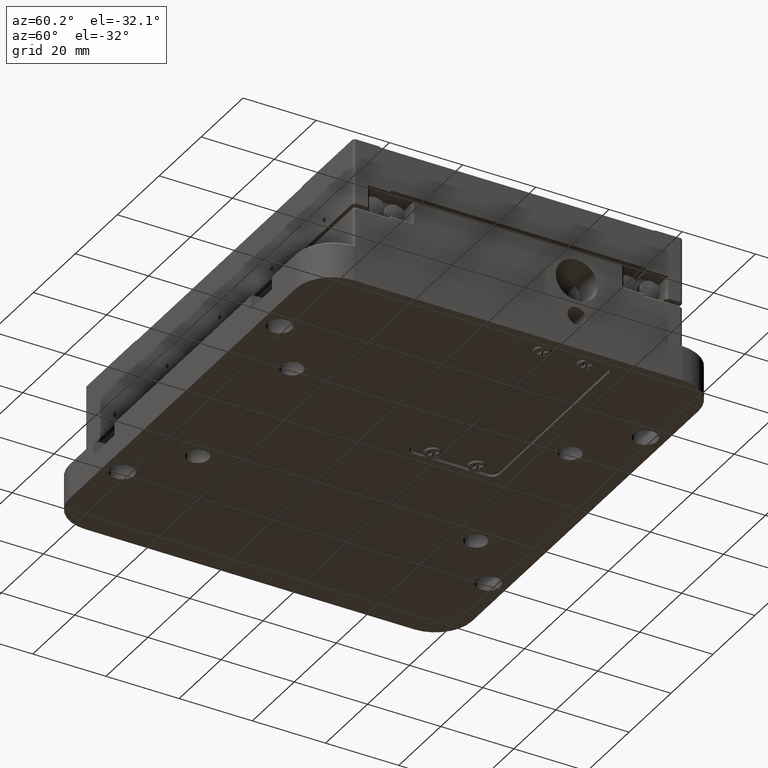
[diagram: clean part render]
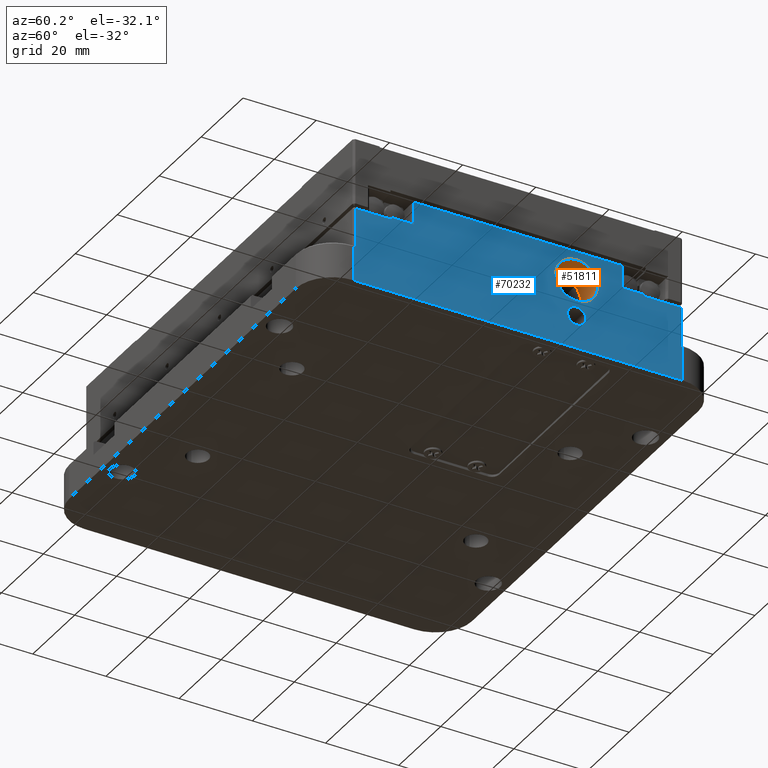
[diagram: same view with the hole feature highlighted: cylindrical wall and planar end face, labeled with their STEP entity ids]
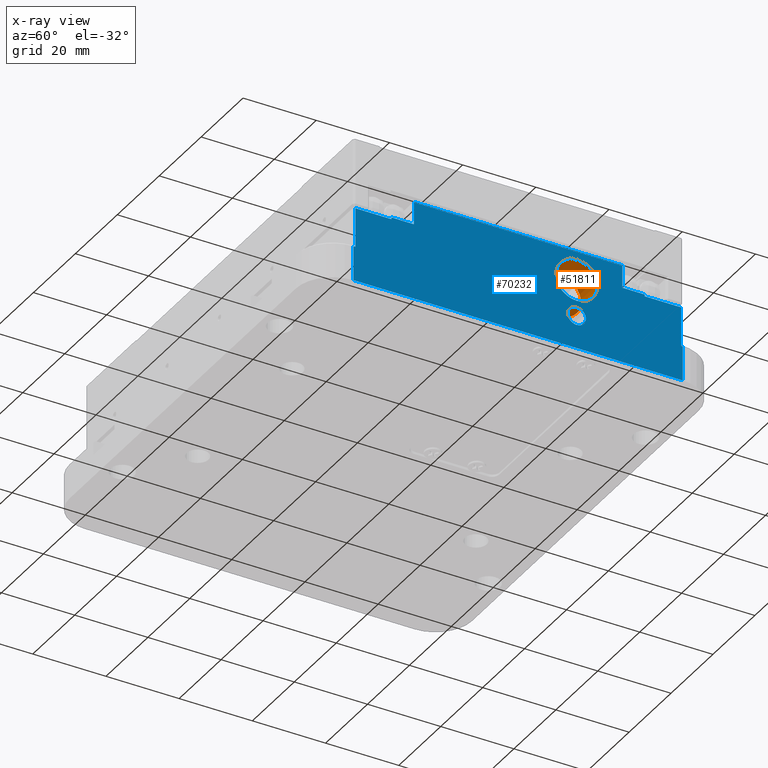
[diagram: x-ray of the same camera — body ghosted, the hole faces saturated]
A machine part, auxiliary view. The highlighted faces form one hole feature of diameter 11.5 mm: the cylindrical wall (entity #51811, orange) and its adjacent planar end face (entity #70232, blue) — they share a circular edge in the B-rep.
The next image is the same camera in x-ray (body ghosted, the hole faces saturated) — the bore reads through the body.
Wall:
#876 = DIRECTION ( 'NONE',  ( 1.000000000000000000, -0.000000000000000000, -0.000000000000000000 ) ) ;
#1079 = AXIS2_PLACEMENT_3D ( 'NONE', #43510, #72374, #71930 ) ;
#2649 = DIRECTION ( 'NONE',  ( 0.000000000000000000, 0.000000000000000000, -1.000000000000000000 ) ) ;
#8419 = VERTEX_POINT ( 'NONE', #36433 ) ;
#14841 = AXIS2_PLACEMENT_3D ( 'NONE', #70426, #876, #2649 ) ;
#15322 = CYLINDRICAL_SURFACE ( 'NONE', #14841, 5.750000000000005329 ) ;
#16817 = EDGE_CURVE ( 'NONE', #45697, #45697, #56047, .T. ) ;
#20576 = DIRECTION ( 'NONE',  ( 0.000000000000000000, 0.000000000000000000, -1.000000000000000000 ) ) ;
#22540 = FACE_OUTER_BOUND ( 'NONE', #37172, .T. ) ;
#24247 = AXIS2_PLACEMENT_3D ( 'NONE', #74779, #82468, #20576 ) ;
#28447 = FACE_OUTER_BOUND ( 'NONE', #78842, .T. ) ;
#32210 = EDGE_CURVE ( 'NONE', #8419, #8419, #64581, .T. ) ;
#36433 = CARTESIAN_POINT ( 'NONE',  ( 150.8923253742261466, 6.150635983151086172, 83.05000005662441254 ) ) ;
#37172 = EDGE_LOOP ( 'NONE', ( #37190 ) ) ;
#37190 = ORIENTED_EDGE ( 'NONE', *, *, #16817, .T. ) ;
#43510 = CARTESIAN_POINT ( 'NONE',  ( 150.8923253742261466, 6.150635983151086172, 88.80000005662441254 ) ) ;
#45253 = CARTESIAN_POINT ( 'NONE',  ( 158.8923253742261466, 6.150635983151086172, 83.05000005662441254 ) ) ;
#45697 = VERTEX_POINT ( 'NONE', #45253 ) ;
#51811 = ADVANCED_FACE ( 'NONE', ( #28447, #22540 ), #15322, .F. ) ;
#56047 = CIRCLE ( 'NONE', #24247, 5.750000000000005329 ) ;
#64581 = CIRCLE ( 'NONE', #1079, 5.750000000000005329 ) ;
#65755 = ORIENTED_EDGE ( 'NONE', *, *, #32210, .F. ) ;
#70426 = CARTESIAN_POINT ( 'NONE',  ( 134.8923253742261466, 6.150635983151086172, 88.80000005662441254 ) ) ;
#71930 = DIRECTION ( 'NONE',  ( 0.000000000000000000, 0.000000000000000000, -1.000000000000000000 ) ) ;
#72374 = DIRECTION ( 'NONE',  ( 1.000000000000000000, -0.000000000000000000, -0.000000000000000000 ) ) ;
#74779 = CARTESIAN_POINT ( 'NONE',  ( 158.8923253742261466, 6.150635983151086172, 88.80000005662441254 ) ) ;
#78842 = EDGE_LOOP ( 'NONE', ( #65755 ) ) ;
#82468 = DIRECTION ( 'NONE',  ( 1.000000000000000000, -0.000000000000000000, -0.000000000000000000 ) ) ;
End face:
#361 = DIRECTION ( 'NONE',  ( 0.000000000000000000, 0.000000000000000000, 1.000000000000000000 ) ) ;
#1348 = EDGE_CURVE ( 'NONE', #7305, #57361, #36471, .T. ) ;
#1456 = VERTEX_POINT ( 'NONE', #33231 ) ;
#2865 = CIRCLE ( 'NONE', #5756, 2.500000000000002220 ) ;
#3173 = EDGE_CURVE ( 'NONE', #80407, #56600, #26276, .T. ) ;
#4599 = CARTESIAN_POINT ( 'NONE',  ( 158.8923253742261466, 35.15063598315107640, 90.60000005662442391 ) ) ;
#5756 = AXIS2_PLACEMENT_3D ( 'NONE', #35364, #8235, #89153 ) ;
#6313 = DIRECTION ( 'NONE',  ( -0.000000000000000000, -0.000000000000000000, -1.000000000000000000 ) ) ;
#6617 = VERTEX_POINT ( 'NONE', #73318 ) ;
#7174 = LINE ( 'NONE', #21636, #70565 ) ;
#7305 = VERTEX_POINT ( 'NONE', #77146 ) ;
#7435 = VERTEX_POINT ( 'NONE', #59441 ) ;
#7515 = ORIENTED_EDGE ( 'NONE', *, *, #16817, .F. ) ;
#7620 = DIRECTION ( 'NONE',  ( 0.000000000000000000, 0.000000000000000000, 1.000000000000000000 ) ) ;
#8235 = DIRECTION ( 'NONE',  ( 1.000000000000000000, -0.000000000000000000, -0.000000000000000000 ) ) ;
#9760 = VECTOR ( 'NONE', #41171, 1000.000000000000000 ) ;
#11487 = VECTOR ( 'NONE', #44819, 1000.000000000000000 ) ;
#12060 = ORIENTED_EDGE ( 'NONE', *, *, #41941, .F. ) ;
#13126 = DIRECTION ( 'NONE',  ( 0.000000000000000000, 1.000000000000000000, -0.000000000000000000 ) ) ;
#13381 = EDGE_CURVE ( 'NONE', #55974, #39505, #15138, .T. ) ;
#15138 = LINE ( 'NONE', #76144, #40719 ) ;
#15990 = CARTESIAN_POINT ( 'NONE',  ( 158.8923253742261466, -54.34936401684886675, 90.10000005662443812 ) ) ;
#16550 = CARTESIAN_POINT ( 'NONE',  ( 158.8923253742261466, 35.15063598315107640, 79.30000005662441254 ) ) ;
#16777 = VECTOR ( 'NONE', #38645, 1000.000000000000000 ) ;
#16817 = EDGE_CURVE ( 'NONE', #45697, #45697, #56047, .T. ) ;
#20170 = VECTOR ( 'NONE', #40789, 1000.000000000000000 ) ;
#20576 = DIRECTION ( 'NONE',  ( 0.000000000000000000, 0.000000000000000000, -1.000000000000000000 ) ) ;
#21220 = ORIENTED_EDGE ( 'NONE', *, *, #52549, .F. ) ;
#21636 = CARTESIAN_POINT ( 'NONE',  ( 158.8923253742261466, -54.34936401684886675, 79.80000005662441254 ) ) ;
#22062 = VERTEX_POINT ( 'NONE', #25941 ) ;
#22492 = EDGE_LOOP ( 'NONE', ( #35814 ) ) ;
#22638 = VERTEX_POINT ( 'NONE', #75980 ) ;
#23777 = DIRECTION ( 'NONE',  ( 0.000000000000000000, 1.000000000000000000, -0.000000000000000000 ) ) ;
#24247 = AXIS2_PLACEMENT_3D ( 'NONE', #74779, #82468, #20576 ) ;
#24368 = ORIENTED_EDGE ( 'NONE', *, *, #32383, .F. ) ;
#25355 = ORIENTED_EDGE ( 'NONE', *, *, #63175, .F. ) ;
#25941 = CARTESIAN_POINT ( 'NONE',  ( 158.8923253742261466, -38.34936401684885254, 96.80000005662442675 ) ) ;
#26276 = LINE ( 'NONE', #4599, #11487 ) ;
#26334 = LINE ( 'NONE', #74654, #20170 ) ;
#26919 = CARTESIAN_POINT ( 'NONE',  ( 158.8923253742261466, 35.15063598315110482, 79.30000005662438411 ) ) ;
#26977 = VERTEX_POINT ( 'NONE', #68524 ) ;
#27290 = ORIENTED_EDGE ( 'NONE', *, *, #66466, .F. ) ;
#27607 = LINE ( 'NONE', #75028, #28941 ) ;
#27792 = CARTESIAN_POINT ( 'NONE',  ( 158.8923253742261466, -38.34936401684886675, 79.80000005662441254 ) ) ;
#28677 = LINE ( 'NONE', #27792, #76955 ) ;
#28941 = VECTOR ( 'NONE', #13126, 1000.000000000000000 ) ;
#29047 = EDGE_CURVE ( 'NONE', #26977, #26977, #2865, .T. ) ;
#29504 = EDGE_CURVE ( 'NONE', #56662, #6617, #27607, .T. ) ;
#29583 = DIRECTION ( 'NONE',  ( 0.000000000000000000, 1.000000000000000000, -0.000000000000000000 ) ) ;
#31432 = CARTESIAN_POINT ( 'NONE',  ( 158.8923253742261466, -54.84936401684885254, 69.80000005662441254 ) ) ;
#32383 = EDGE_CURVE ( 'NONE', #33997, #72593, #47486, .T. ) ;
#32615 = FACE_BOUND ( 'NONE', #62728, .T. ) ;
#32826 = EDGE_CURVE ( 'NONE', #22062, #22638, #53699, .T. ) ;
#33231 = CARTESIAN_POINT ( 'NONE',  ( 158.8923253742261466, -54.84936401684880991, 69.80000005662441254 ) ) ;
#33391 = DIRECTION ( 'NONE',  ( 0.000000000000000000, 1.000000000000000000, -0.000000000000000000 ) ) ;
#33997 = VERTEX_POINT ( 'NONE', #26919 ) ;
#34094 = CARTESIAN_POINT ( 'NONE',  ( 158.8923253742261466, 34.65063598315115456, 79.30000005662438411 ) ) ;
#35257 = VECTOR ( 'NONE', #80398, 1000.000000000000000 ) ;
#35364 = CARTESIAN_POINT ( 'NONE',  ( 158.8923253742261466, 6.150635983151086172, 78.80000005662441254 ) ) ;
#35814 = ORIENTED_EDGE ( 'NONE', *, *, #29047, .F. ) ;
#36471 = LINE ( 'NONE', #50459, #46940 ) ;
#36494 = CARTESIAN_POINT ( 'NONE',  ( 158.8923253742261466, 18.65063598315110482, 90.60000005662443812 ) ) ;
#37466 = CARTESIAN_POINT ( 'NONE',  ( 158.8923253742261466, -38.34936401684885965, 90.60000005662440969 ) ) ;
#37619 = ORIENTED_EDGE ( 'NONE', *, *, #57648, .F. ) ;
#38587 = DIRECTION ( 'NONE',  ( -0.000000000000000000, 0.000000000000000000, -1.000000000000000000 ) ) ;
#38645 = DIRECTION ( 'NONE',  ( -0.000000000000000000, 1.000000000000000000, 0.000000000000000000 ) ) ;
#38652 = VECTOR ( 'NONE', #33391, 1000.000000000000000 ) ;
#39036 = EDGE_CURVE ( 'NONE', #22638, #80407, #52864, .T. ) ;
#39490 = CARTESIAN_POINT ( 'NONE',  ( 158.8923253742261466, -44.44936401684884686, 91.10000005662440969 ) ) ;
#39505 = VERTEX_POINT ( 'NONE', #57558 ) ;
#39853 = FACE_BOUND ( 'NONE', #22492, .T. ) ;
#40719 = VECTOR ( 'NONE', #29583, 1000.000000000000000 ) ;
#40729 = CARTESIAN_POINT ( 'NONE',  ( 158.8923253742261466, 35.15063598315109061, 79.80000005662441254 ) ) ;
#40789 = DIRECTION ( 'NONE',  ( 0.000000000000000000, 1.000000000000000000, -0.000000000000000000 ) ) ;
#41171 = DIRECTION ( 'NONE',  ( -0.000000000000000000, -0.000000000000000000, -1.000000000000000000 ) ) ;
#41453 = LINE ( 'NONE', #69011, #47036 ) ;
#41941 = EDGE_CURVE ( 'NONE', #7435, #56662, #7174, .T. ) ;
#42927 = VECTOR ( 'NONE', #38587, 1000.000000000000000 ) ;
#44819 = DIRECTION ( 'NONE',  ( 0.000000000000000000, 1.000000000000000000, -0.000000000000000000 ) ) ;
#45075 = ORIENTED_EDGE ( 'NONE', *, *, #13381, .F. ) ;
#45253 = CARTESIAN_POINT ( 'NONE',  ( 158.8923253742261466, 6.150635983151086172, 83.05000005662441254 ) ) ;
#45697 = VERTEX_POINT ( 'NONE', #45253 ) ;
#46940 = VECTOR ( 'NONE', #77161, 1000.000000000000000 ) ;
#47036 = VECTOR ( 'NONE', #361, 1000.000000000000000 ) ;
#47205 = EDGE_CURVE ( 'NONE', #54597, #7435, #78465, .T. ) ;
#47486 = LINE ( 'NONE', #40729, #9760 ) ;
#48418 = DIRECTION ( 'NONE',  ( 0.000000000000000000, 0.000000000000000000, 1.000000000000000000 ) ) ;
#49836 = EDGE_CURVE ( 'NONE', #1456, #72593, #66210, .T. ) ;
#50459 = CARTESIAN_POINT ( 'NONE',  ( 158.8923253742261466, 35.15063598315107640, 90.60000005662440969 ) ) ;
#50802 = DIRECTION ( 'NONE',  ( -0.000000000000000000, 0.000000000000000000, 1.000000000000000000 ) ) ;
#51017 = VECTOR ( 'NONE', #23777, 1000.000000000000000 ) ;
#52549 = EDGE_CURVE ( 'NONE', #57361, #22062, #28677, .T. ) ;
#52832 = CARTESIAN_POINT ( 'NONE',  ( 158.8923253742261466, 34.65063598315114035, 79.80000005662441254 ) ) ;
#52864 = LINE ( 'NONE', #82225, #87452 ) ;
#53699 = LINE ( 'NONE', #60927, #38652 ) ;
#53839 = FACE_OUTER_BOUND ( 'NONE', #68048, .T. ) ;
#54249 = ORIENTED_EDGE ( 'NONE', *, *, #29504, .F. ) ;
#54597 = VERTEX_POINT ( 'NONE', #74436 ) ;
#55191 = CARTESIAN_POINT ( 'NONE',  ( 158.8923253742261466, 35.15063598315107640, 79.80000005662441254 ) ) ;
#55974 = VERTEX_POINT ( 'NONE', #84099 ) ;
#56047 = CIRCLE ( 'NONE', #24247, 5.750000000000005329 ) ;
#56600 = VERTEX_POINT ( 'NONE', #83332 ) ;
#56662 = VERTEX_POINT ( 'NONE', #15990 ) ;
#57162 = LINE ( 'NONE', #84724, #76939 ) ;
#57361 = VERTEX_POINT ( 'NONE', #37466 ) ;
#57558 = CARTESIAN_POINT ( 'NONE',  ( 158.8923253742261466, 34.65063598315114035, 90.10000005662440969 ) ) ;
#57648 = EDGE_CURVE ( 'NONE', #1456, #54597, #41453, .T. ) ;
#59441 = CARTESIAN_POINT ( 'NONE',  ( 158.8923253742261466, -54.34936401684886675, 79.30000005662441254 ) ) ;
#60109 = ORIENTED_EDGE ( 'NONE', *, *, #80899, .T. ) ;
#60927 = CARTESIAN_POINT ( 'NONE',  ( 158.8923253742261466, 35.15063598315107640, 96.80000005662442675 ) ) ;
#60972 = ORIENTED_EDGE ( 'NONE', *, *, #47205, .F. ) ;
#61523 = DIRECTION ( 'NONE',  ( -1.000000000000000000, 0.000000000000000000, 0.000000000000000000 ) ) ;
#62728 = EDGE_LOOP ( 'NONE', ( #7515 ) ) ;
#62743 = ORIENTED_EDGE ( 'NONE', *, *, #3173, .F. ) ;
#63175 = EDGE_CURVE ( 'NONE', #83259, #33997, #26334, .T. ) ;
#63446 = DIRECTION ( 'NONE',  ( 0.000000000000000000, 0.000000000000000000, 1.000000000000000000 ) ) ;
#64668 = CARTESIAN_POINT ( 'NONE',  ( 158.8923253742261466, 35.15063598315111904, 69.80000005662441254 ) ) ;
#66210 = LINE ( 'NONE', #31432, #16777 ) ;
#66466 = EDGE_CURVE ( 'NONE', #39505, #83259, #72287, .T. ) ;
#66737 = ORIENTED_EDGE ( 'NONE', *, *, #1348, .F. ) ;
#68048 = EDGE_LOOP ( 'NONE', ( #66737, #75430, #54249, #12060, #60972, #37619, #69811, #24368, #25355, #27290, #45075, #60109, #62743, #69921, #73244, #21220 ) ) ;
#68524 = CARTESIAN_POINT ( 'NONE',  ( 158.8923253742261466, 6.150635983151086172, 76.30000005662441254 ) ) ;
#69011 = CARTESIAN_POINT ( 'NONE',  ( 158.8923253742261466, -54.84936401684878149, 79.80000005662441254 ) ) ;
#69811 = ORIENTED_EDGE ( 'NONE', *, *, #49836, .T. ) ;
#69921 = ORIENTED_EDGE ( 'NONE', *, *, #39036, .F. ) ;
#70232 = ADVANCED_FACE ( 'NONE', ( #53839, #39853, #32615 ), #88646, .F. ) ;
#70565 = VECTOR ( 'NONE', #7620, 1000.000000000000000 ) ;
#71527 = AXIS2_PLACEMENT_3D ( 'NONE', #55191, #61523, #48418 ) ;
#72287 = LINE ( 'NONE', #52832, #35257 ) ;
#72593 = VERTEX_POINT ( 'NONE', #64668 ) ;
#73244 = ORIENTED_EDGE ( 'NONE', *, *, #32826, .F. ) ;
#73318 = CARTESIAN_POINT ( 'NONE',  ( 158.8923253742261466, -44.44936401684886107, 90.10000005662443812 ) ) ;
#74436 = CARTESIAN_POINT ( 'NONE',  ( 158.8923253742261466, -54.84936401684880991, 79.30000005662441254 ) ) ;
#74654 = CARTESIAN_POINT ( 'NONE',  ( 158.8923253742261466, 35.15063598315107640, 79.30000005662438411 ) ) ;
#74779 = CARTESIAN_POINT ( 'NONE',  ( 158.8923253742261466, 6.150635983151086172, 88.80000005662441254 ) ) ;
#75028 = CARTESIAN_POINT ( 'NONE',  ( 158.8923253742261466, 35.15063598315107640, 90.10000005662442391 ) ) ;
#75430 = ORIENTED_EDGE ( 'NONE', *, *, #87301, .T. ) ;
#75980 = CARTESIAN_POINT ( 'NONE',  ( 158.8923253742261466, 18.65063598315110482, 96.80000005662442675 ) ) ;
#76144 = CARTESIAN_POINT ( 'NONE',  ( 158.8923253742261466, 35.15063598315107640, 90.10000005662440969 ) ) ;
#76939 = VECTOR ( 'NONE', #50802, 1000.000000000000000 ) ;
#76955 = VECTOR ( 'NONE', #63446, 1000.000000000000000 ) ;
#77146 = CARTESIAN_POINT ( 'NONE',  ( 158.8923253742261466, -44.44936401684884686, 90.60000005662440969 ) ) ;
#77161 = DIRECTION ( 'NONE',  ( 0.000000000000000000, 1.000000000000000000, -0.000000000000000000 ) ) ;
#78465 = LINE ( 'NONE', #16550, #51017 ) ;
#80398 = DIRECTION ( 'NONE',  ( -0.000000000000000000, -0.000000000000000000, -1.000000000000000000 ) ) ;
#80407 = VERTEX_POINT ( 'NONE', #36494 ) ;
#80899 = EDGE_CURVE ( 'NONE', #55974, #56600, #57162, .T. ) ;
#82225 = CARTESIAN_POINT ( 'NONE',  ( 158.8923253742261466, 18.65063598315110838, 79.80000005662441254 ) ) ;
#82468 = DIRECTION ( 'NONE',  ( 1.000000000000000000, -0.000000000000000000, -0.000000000000000000 ) ) ;
#83259 = VERTEX_POINT ( 'NONE', #34094 ) ;
#83332 = CARTESIAN_POINT ( 'NONE',  ( 158.8923253742261466, 24.75063598315108493, 90.60000005662442391 ) ) ;
#84099 = CARTESIAN_POINT ( 'NONE',  ( 158.8923253742261466, 24.75063598315108493, 90.10000005662440969 ) ) ;
#84724 = CARTESIAN_POINT ( 'NONE',  ( 158.8923253742261466, 24.75063598315108493, 91.10000005662440969 ) ) ;
#87301 = EDGE_CURVE ( 'NONE', #7305, #6617, #88263, .T. ) ;
#87452 = VECTOR ( 'NONE', #6313, 1000.000000000000000 ) ;
#88263 = LINE ( 'NONE', #39490, #42927 ) ;
#88646 = PLANE ( 'NONE',  #71527 ) ;
#89153 = DIRECTION ( 'NONE',  ( 0.000000000000000000, 0.000000000000000000, -1.000000000000000000 ) ) ;